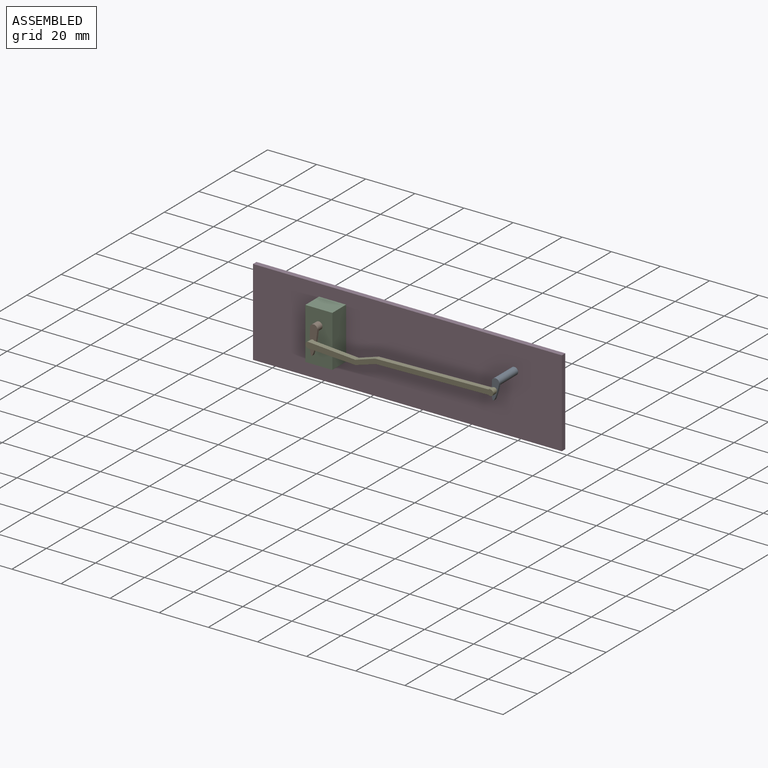
[diagram: assembled view]
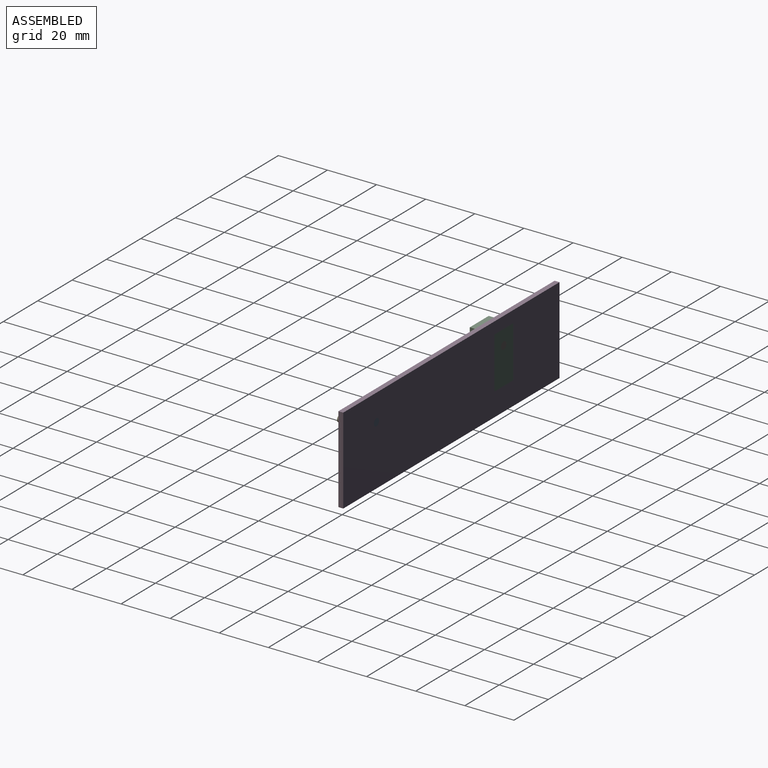
[diagram: assembled view, second angle]
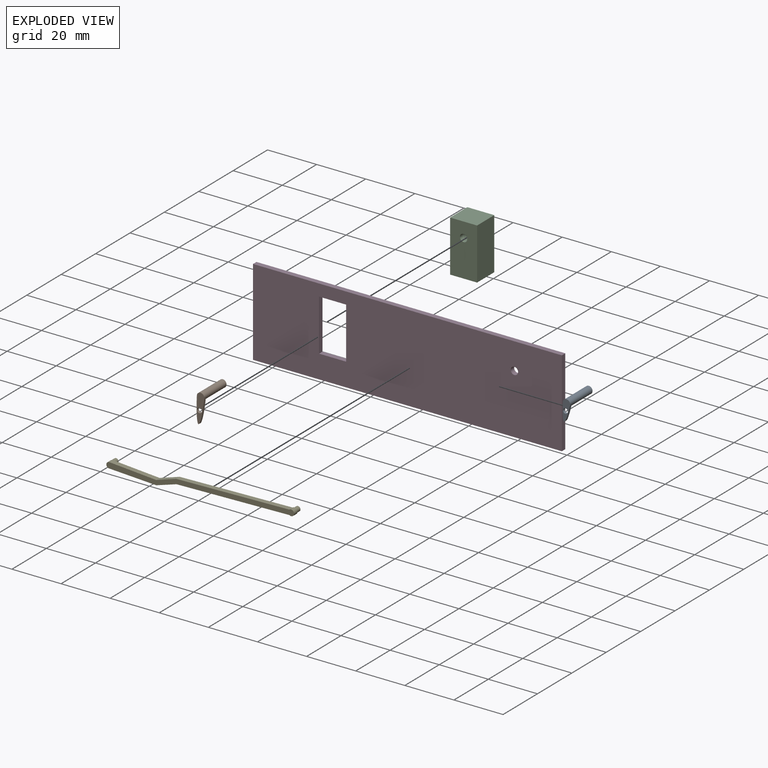
[diagram: exploded view]
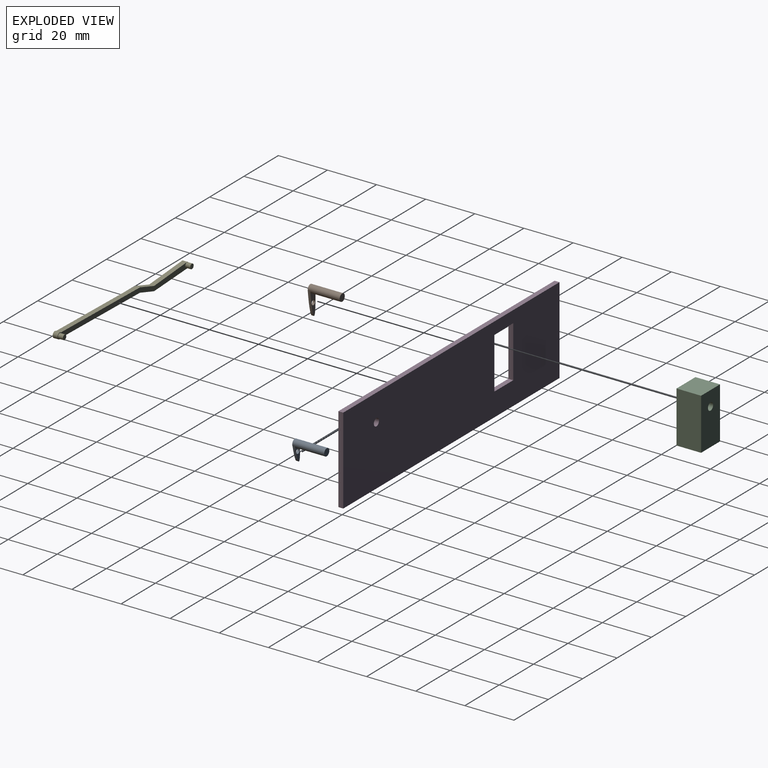
[diagram: exploded view, second angle]
ASSEMBLY  parts=5 mates=4
PART A: 7 faces, bbox 3x13x8.5 mm
  f0: cylinder r=1.5mm len=13mm, axis (0,1,0), area 118.3mm2, adj f1,f2,f3,f4,f6
  f1: plane 8.53x3mm, normal (0,-1,0), area 15mm2, adj f0,f3,f4,f5
  f2: plane 3x3mm, normal (0,1,0), area 7.1mm2, adj f0
  f3: extruded ~6.85x1.49mm, area 7.2mm2, adj f0,f1,f4,f6
  f4: extruded ~6.74x1.47mm, area 7mm2, adj f0,f1,f3,f6
  f5: cylinder r=1mm len=2mm, axis (0,-1,0), area 6.3mm2, adj f1,f6
  f6: plane 7.03x3mm, normal (0,1,0), area 7.9mm2, adj f0,f3,f4,f5
PART B: 7 faces, bbox 3x13x11.8 mm
  f0: plane 11.84x3.01mm, normal (0,-1,0), area 23.3mm2, adj f1,f3,f4,f5
  f1: cylinder r=1.5mm len=13mm, axis (0,1,0), area 118mm2, adj f0,f2,f3,f4,f6
  f2: plane 3x3mm, normal (0,1,0), area 7.1mm2, adj f1
  f3: extruded ~10.17x1.49mm, area 10.4mm2, adj f0,f1,f4,f6
  f4: extruded ~10.25x1.5mm, area 10.5mm2, adj f0,f1,f3,f6
  f5: cylinder r=1mm len=2mm, axis (0,-1,0), area 6.3mm2, adj f0,f6
  f6: plane 10.39x3mm, normal (0,1,0), area 16.2mm2, adj f1,f3,f4,f5
PART C: 7 faces, bbox 11x10x21 mm
  f0: plane 11x10mm, normal (0,0,1), area 110mm2, adj f1,f4,f5,f6
  f1: plane 21x10mm, normal (-1,0,0), area 210mm2, adj f0,f2,f5,f6
  f2: plane 11x10mm, normal (0,0,-1), area 110mm2, adj f1,f4,f5,f6
  f3: cylinder r=1.5mm len=10mm, axis (0,1,0), area 94.2mm2, adj f5,f6
  f4: plane 21x10mm, normal (1,0,0), area 210mm2, adj f0,f2,f5,f6
  f5: plane 21x11mm, normal (0,-1,0), area 223.9mm2, adj f0,f1,f2,f3,f4
  f6: plane 21x11mm, normal (0,1,0), area 223.9mm2, adj f0,f1,f2,f3,f4
PART D: 11 faces, bbox 125.8x2x35.3 mm
  f0: plane 125.76x2mm, normal (0,0,1), area 251.5mm2, adj f1,f8,f9,f10
  f1: plane 35.29x2mm, normal (-1,0,0), area 70.6mm2, adj f0,f2,f9,f10
  f2: plane 125.76x2mm, normal (0,0,-1), area 251.5mm2, adj f1,f8,f9,f10
  f3: plane 21x2mm, normal (1,0,0), area 42mm2, adj f4,f7,f9,f10
  f4: plane 11x2mm, normal (0,0,-1), area 22mm2, adj f3,f5,f9,f10
  f5: plane 21x2mm, normal (-1,0,0), area 42mm2, adj f4,f7,f9,f10
  f6: cylinder r=1.5mm len=3mm, axis (0,1,0), area 18.8mm2, adj f9,f10
  f7: plane 11x2mm, normal (0,0,1), area 22mm2, adj f3,f5,f9,f10
  f8: plane 35.29x2mm, normal (1,0,0), area 70.6mm2, adj f0,f2,f9,f10
  f9: plane 125.76x35.29mm, normal (0,-1,0), area 4200mm2, adj f0,f1,f2,f3,f4,f5,f6,f7
  f10: plane 125.76x35.29mm, normal (0,1,0), area 4200mm2, adj f0,f1,f2,f3,f4,f5,f6,f7
PART E: 16 faces, bbox 76.5x4x5.8 mm
  f0: cylinder r=1mm len=2mm, axis (0,-1,0), area 12.6mm2, adj f1,f4
  f1: plane 2x2mm, normal (0,1,0), area 3.1mm2, adj f0
  f2: cylinder r=1mm len=2mm, axis (0,-1,0), area 12.6mm2, adj f3,f4,f14
  f3: plane 2x2mm, normal (0,1,0), area 3.1mm2, adj f2
  f4: plane 76.47x5.78mm, normal (0,1,0), area 148mm2, adj f0,f2,f5,f6,f7,f8,f9,f10
  f5: cylinder r=1mm len=2mm, axis (0,1,0), area 0.1mm2, adj f4,f14,f15
  f6: cylinder r=1.17mm len=2.34mm, axis (0,1,0), area 7.4mm2, adj f4,f7,f13,f15
  f7: plane 19.2x2mm, normal (-0.06,0,-1), area 38.5mm2, adj f4,f6,f8,f15
  f8: plane 8.27x2.59mm, normal (0.3,0,-0.95), area 17.3mm2, adj f4,f7,f9,f15
  f9: plane 45.95x2mm, normal (0.02,0,-1), area 91.9mm2, adj f4,f8,f10,f15
  f10: cylinder r=1.24mm len=2.48mm, axis (0,1,0), area 10.9mm2, adj f4,f9,f11,f15
  f11: plane 46.01x2mm, normal (-0.02,0,1), area 92mm2, adj f4,f10,f12,f15
  f12: plane 8.17x2.6mm, normal (-0.3,0,0.95), area 17.2mm2, adj f4,f11,f13,f15
  f13: plane 19.04x2mm, normal (0.08,0,1), area 38.2mm2, adj f4,f6,f12,f15
  f14: plane 2x0.04mm, normal (-0.02,0,1), area 0.1mm2, adj f2,f5,f15
  f15: plane 76.47x5.78mm, normal (0,-1,0), area 154.3mm2, adj f5,f6,f7,f8,f9,f10,f11,f12
PLACE A rot(axis=(0,1,0),8.1deg) t=(1.23,0,-0.09)mm
PLACE B rot(axis=(0,1,0),4.6deg) t=(0.47,0,-6.02)mm
PLACE C at identity fixed
PLACE D at identity fixed
PLACE E rot(axis=(0,-1,0),0deg) t=(-0.42,0.5,0.03)mm
MATE revolute C.f3 <-> B.f1  axis (0,1,0) through (-74.07,0,-8.77)mm
MATE revolute A.f0 <-> D.f6  axis (0,1,0) through (0,0,-8.77)mm
MATE revolute B.f5 <-> E.f0  axis (0,-1,0) through (-74.48,-12.5,-13.91)mm
MATE revolute A.f5 <-> E.f2  axis (0,-1,0) through (-0.42,-12.5,-11.71)mm
